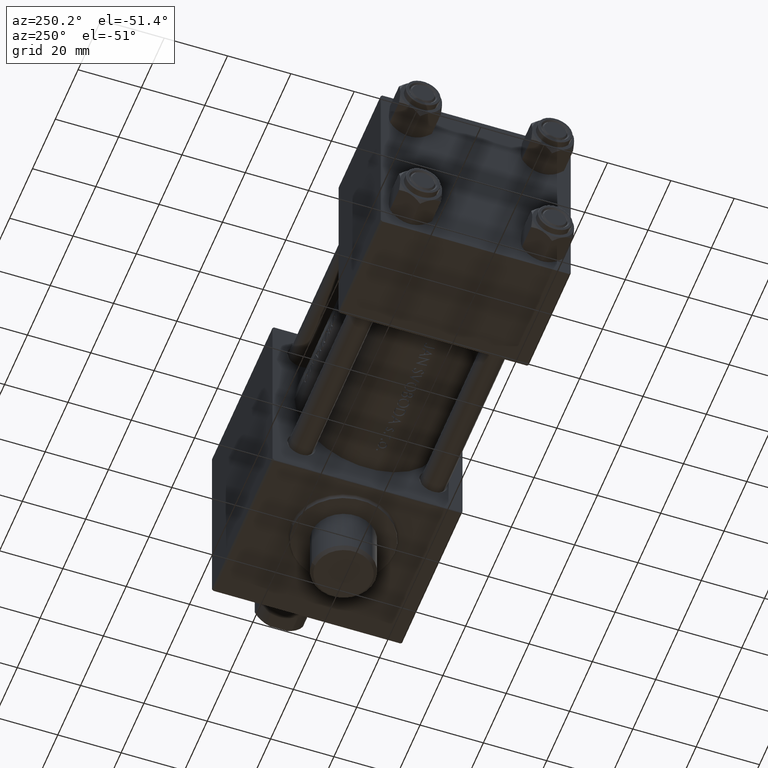
[diagram: clean part render]
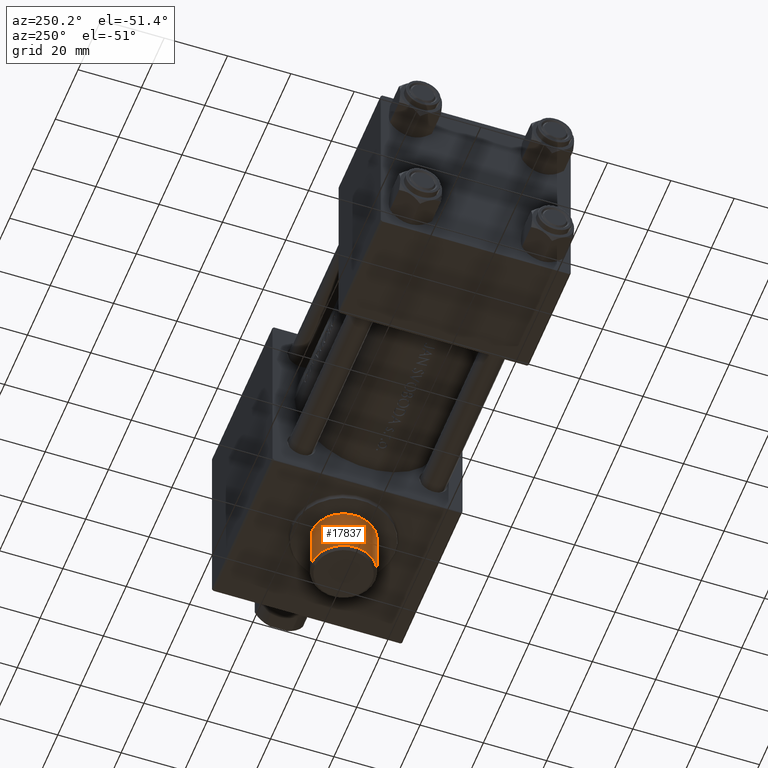
[diagram: same view with one face highlighted and labeled with its STEP entity id]
A machine part, auxiliary view. The second image highlights one B-rep face of the part: STEP entity #17837.
In plain terms, the highlighted cylindrical surface (edge-blend (fillet) strip) has radius 10 mm, axis along (0, 0, 1).
Its self-contained STEP definition (entity closure, byte-faithful):
#2956 = AXIS2_PLACEMENT_3D ( 'NONE', #8786, #5294, #33880 ) ;
#3272 = AXIS2_PLACEMENT_3D ( 'NONE', #14773, #36338, #4244 ) ;
#3809 = EDGE_LOOP ( 'NONE', ( #14548, #33781, #20695, #8286 ) ) ;
#4244 = DIRECTION ( 'NONE',  ( 0.000000000000000000, 0.000000000000000000, -1.000000000000000000 ) ) ;
#5283 = EDGE_CURVE ( 'NONE', #26824, #24488, #40329, .T. ) ;
#5294 = DIRECTION ( 'NONE',  ( -0.000000000000000000, -1.000000000000000000, 8.673617379884037937E-17 ) ) ;
#8286 = ORIENTED_EDGE ( 'NONE', *, *, #24364, .F. ) ;
#8672 = CARTESIAN_POINT ( 'NONE',  ( 115.9999999999999858, 47.49999999999995737, -10.00000000000001066 ) ) ;
#8786 = CARTESIAN_POINT ( 'NONE',  ( 115.9999999999999858, 47.49999999999995737, -1.387778780781441731E-15 ) ) ;
#10951 = CARTESIAN_POINT ( 'NONE',  ( 115.9999999999999858, 48.50000000000000711, -10.00000000000001066 ) ) ;
#11734 = CARTESIAN_POINT ( 'NONE',  ( 115.9999999999999858, 48.50000000000000711, 10.00000000000000711 ) ) ;
#13027 = CARTESIAN_POINT ( 'NONE',  ( 115.9999999999999858, 47.49999999999995737, 10.00000000000000711 ) ) ;
#13190 = CARTESIAN_POINT ( 'NONE',  ( 115.9999999999999858, 32.50000000000000711, -10.00000000000000888 ) ) ;
#14548 = ORIENTED_EDGE ( 'NONE', *, *, #35939, .F. ) ;
#14773 = CARTESIAN_POINT ( 'NONE',  ( 115.9999999999999858, 32.50000000000000711, -8.673617379884042868E-17 ) ) ;
#15129 = AXIS2_PLACEMENT_3D ( 'NONE', #22663, #19367, #15396 ) ;
#15396 = DIRECTION ( 'NONE',  ( 0.000000000000000000, 0.000000000000000000, -1.000000000000000000 ) ) ;
#16093 = VERTEX_POINT ( 'NONE', #13190 ) ;
#17048 = LINE ( 'NONE', #10951, #19328 ) ;
#17837 = ADVANCED_FACE ( 'NONE', ( #18447 ), #44444, .T. ) ;
#18447 = FACE_OUTER_BOUND ( 'NONE', #3809, .T. ) ;
#18794 = VECTOR ( 'NONE', #39869, 1000.000000000000000 ) ;
#19328 = VECTOR ( 'NONE', #32275, 1000.000000000000000 ) ;
#19367 = DIRECTION ( 'NONE',  ( -0.000000000000000000, -1.000000000000000000, 8.673617379884036705E-17 ) ) ;
#20695 = ORIENTED_EDGE ( 'NONE', *, *, #26624, .T. ) ;
#22663 = CARTESIAN_POINT ( 'NONE',  ( 115.9999999999999858, 48.50000000000000711, -1.474514954580286425E-15 ) ) ;
#24364 = EDGE_CURVE ( 'NONE', #46090, #16093, #45893, .T. ) ;
#24488 = VERTEX_POINT ( 'NONE', #8672 ) ;
#26624 = EDGE_CURVE ( 'NONE', #24488, #16093, #17048, .T. ) ;
#26824 = VERTEX_POINT ( 'NONE', #13027 ) ;
#32275 = DIRECTION ( 'NONE',  ( -0.000000000000000000, -1.000000000000000000, 8.673617379884036705E-17 ) ) ;
#33781 = ORIENTED_EDGE ( 'NONE', *, *, #5283, .T. ) ;
#33880 = DIRECTION ( 'NONE',  ( 0.000000000000000000, 0.000000000000000000, 1.000000000000000000 ) ) ;
#35939 = EDGE_CURVE ( 'NONE', #26824, #46090, #40323, .T. ) ;
#36338 = DIRECTION ( 'NONE',  ( -0.000000000000000000, -1.000000000000000000, 8.673617379884036705E-17 ) ) ;
#39869 = DIRECTION ( 'NONE',  ( -0.000000000000000000, -1.000000000000000000, 8.673617379884036705E-17 ) ) ;
#40323 = LINE ( 'NONE', #11734, #18794 ) ;
#40329 = CIRCLE ( 'NONE', #2956, 10.00000000000000888 ) ;
#44444 = CYLINDRICAL_SURFACE ( 'NONE', #15129, 10.00000000000000888 ) ;
#44774 = CARTESIAN_POINT ( 'NONE',  ( 115.9999999999999858, 32.50000000000000711, 10.00000000000000888 ) ) ;
#45893 = CIRCLE ( 'NONE', #3272, 10.00000000000000888 ) ;
#46090 = VERTEX_POINT ( 'NONE', #44774 ) ;